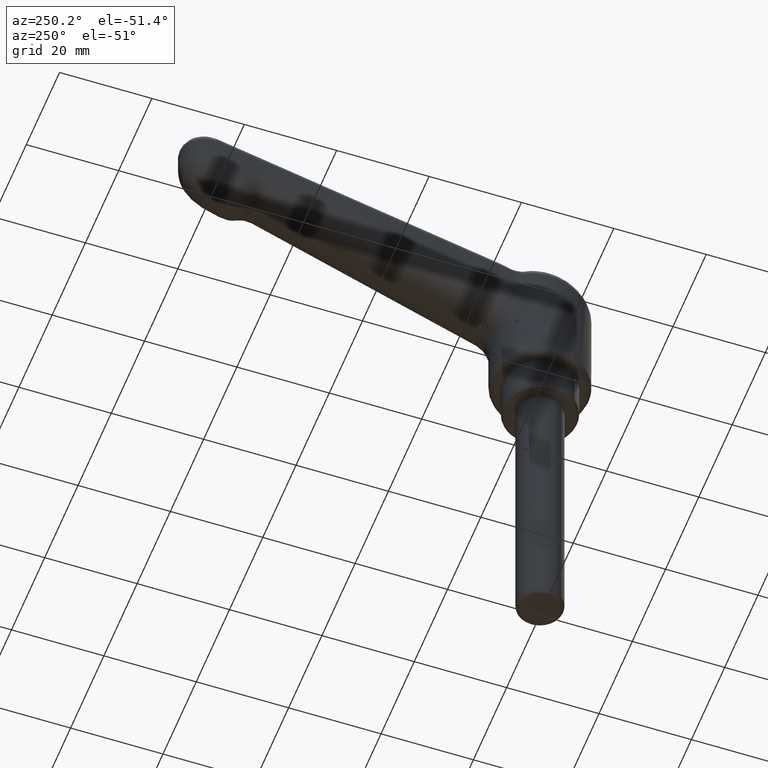
[diagram: clean part render]
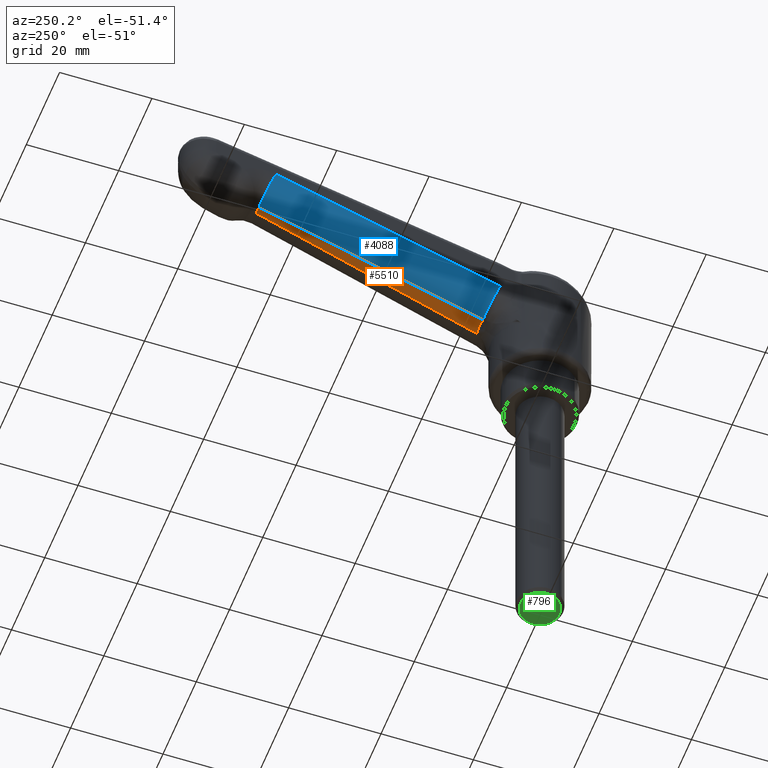
[diagram: same view with three faces highlighted in distinct colors, each labeled with its STEP entity id]
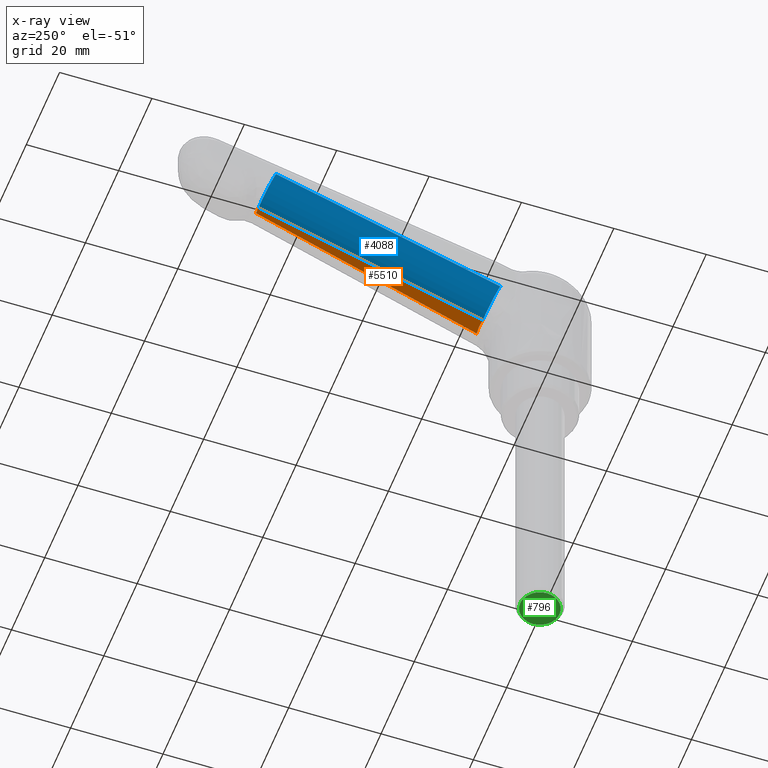
[diagram: x-ray of the same camera — body ghosted, the three highlighted faces saturated]
A machine part, auxiliary view with three faces highlighted in distinct colors.
The next image is the same camera in x-ray (body ghosted, the three faces saturated) — at least one of them is partly hidden behind the body in this view.
Their STEP definitions:

[orange] entity #5510 — the highlighted face is a freeform B-spline surface patch.
#3114=CARTESIAN_POINT('',(61.163736130805503,-0.794885205271934,33.054697017193099));
#3115=VERTEX_POINT('',#3114);
#3169=CARTESIAN_POINT('',(13.005437633756101,-1.911018015219480,15.526517656288650));
#3170=VERTEX_POINT('',#3169);
#3185=CARTESIAN_POINT('',(61.163736130805503,-0.794885205271934,33.054697017193099));
#3186=CARTESIAN_POINT('',(13.005437633756101,-1.911018015219480,15.526517656288650));
#3187=QUASI_UNIFORM_CURVE('',1,(#3185,#3186),.UNSPECIFIED.,.F.,.U.);
#3188=EDGE_CURVE('',#3115,#3170,#3187,.T.);
#4002=CARTESIAN_POINT('',(61.163736130805503,0.794885205271823,33.054697017193099));
#4003=VERTEX_POINT('',#4002);
#4057=CARTESIAN_POINT('',(13.005437633756101,1.911018015219485,15.526517656288650));
#4058=VERTEX_POINT('',#4057);
#4081=CARTESIAN_POINT('',(13.005437633756101,1.911018015219485,15.526517656288650));
#4082=CARTESIAN_POINT('',(61.163736130805503,0.794885205271823,33.054697017193099));
#4083=QUASI_UNIFORM_CURVE('',1,(#4081,#4082),.UNSPECIFIED.,.F.,.U.);
#4084=EDGE_CURVE('',#4058,#4003,#4083,.T.);
#4343=CARTESIAN_POINT('',(61.163736130805503,0.794885205271823,33.054697017193099));
#4344=CARTESIAN_POINT('',(61.163736130805503,-0.794885205271934,33.054697017193099));
#4345=QUASI_UNIFORM_CURVE('',1,(#4343,#4344),.UNSPECIFIED.,.F.,.U.);
#4346=EDGE_CURVE('',#4003,#3115,#4345,.T.);
#4978=CARTESIAN_POINT('',(13.005437633756101,-1.911018015219480,15.526517656288650));
#4979=CARTESIAN_POINT('',(13.174143378410481,-0.645424743213084,15.587921498280631));
#4980=CARTESIAN_POINT('',(13.174003672925030,0.645423185377294,15.587870649665120));
#4981=CARTESIAN_POINT('',(13.005437633756101,1.911018015219485,15.526517656288650));
#4982=B_SPLINE_CURVE_WITH_KNOTS('',3,(#4978,#4979,#4980,#4981),.UNSPECIFIED.,.F.,.U.,(4,4),(2.738286E-009,3.834676172867781),.UNSPECIFIED.);
#4983=EDGE_CURVE('',#3170,#4058,#4982,.T.);
#5499=CARTESIAN_POINT('',(10.599930889223890,-2.101928707532058,14.650985193807401));
#5500=CARTESIAN_POINT('',(63.569240722494023,-2.101928707532058,33.930228696103633));
#5501=CARTESIAN_POINT('',(10.599930889223890,2.101928810047059,14.650985193807401));
#5502=CARTESIAN_POINT('',(63.569240722494023,2.101928810047059,33.930228696103633));
#5503=B_SPLINE_SURFACE_WITH_KNOTS('',1,1,((#5499,#5501),(#5500,#5502)),.UNSPECIFIED.,.F.,.F.,.U.,(2,2),(2,2),(0.0,56.368759204312802),(0.0,4.203857517579117),.UNSPECIFIED.);
#5504=ORIENTED_EDGE('',*,*,#4346,.T.);
#5505=ORIENTED_EDGE('',*,*,#3188,.T.);
#5506=ORIENTED_EDGE('',*,*,#4983,.T.);
#5507=ORIENTED_EDGE('',*,*,#4084,.T.);
#5508=EDGE_LOOP('',(#5504,#5505,#5506,#5507));
#5509=FACE_OUTER_BOUND('',#5508,.T.);
#5510=ADVANCED_FACE('',(#5509),#5503,.F.);

[blue] entity #4088 — the highlighted face is a freeform B-spline surface patch.
#4002=CARTESIAN_POINT('',(61.163736130805503,0.794885205271823,33.054697017193099));
#4003=VERTEX_POINT('',#4002);
#4004=CARTESIAN_POINT('',(59.410061699998501,6.293408658326110,38.223006701410803));
#4005=VERTEX_POINT('',#4004);
#4006=CARTESIAN_POINT('',(61.163736130805503,0.794885205271823,33.054697017193099));
#4007=CARTESIAN_POINT('',(61.174820961177083,1.332032634786109,33.058445341459652));
#4008=CARTESIAN_POINT('',(61.151158126316147,2.115150332408724,33.173324655471568));
#4009=CARTESIAN_POINT('',(61.030587934510372,3.227697185339556,33.575431753242590));
#4010=CARTESIAN_POINT('',(60.885213632777500,4.020756065223317,34.025343742976382));
#4011=CARTESIAN_POINT('',(60.682278990182802,4.745891429776674,34.629076409539131));
#4012=CARTESIAN_POINT('',(60.475460255120709,5.279609428456720,35.231291752622681));
#4013=CARTESIAN_POINT('',(60.216102596407687,5.756720724787903,35.974252150816028));
#4014=CARTESIAN_POINT('',(59.866504582389901,6.167767588169885,36.960939247499212));
#4015=CARTESIAN_POINT('',(59.578416980457007,6.289666713823559,37.760215889549158));
#4016=CARTESIAN_POINT('',(59.410061699998501,6.293408658326110,38.223006701410803));
#4017=B_SPLINE_CURVE_WITH_KNOTS('',3,(#4006,#4007,#4008,#4009,#4010,#4011,#4012,#4013,#4014,#4015,#4016),.UNSPECIFIED.,.F.,.U.,(4,1,1,1,1,1,1,1,4),(0.000000126640677,1.611710439410921,2.350431836063304,3.559247636671121,4.365040148519255,5.238072709785161,6.043951686618041,7.118451042623086,8.595847202874614),.UNSPECIFIED.);
#4018=EDGE_CURVE('',#4003,#4005,#4017,.T.);
#4043=CARTESIAN_POINT('',(9.998545241252071,7.436701247559301,20.391917680247278));
#4044=CARTESIAN_POINT('',(60.594857599714651,6.264064214108152,38.807461121297592));
#4045=CARTESIAN_POINT('',(12.017655519398268,7.544339504780888,14.851309332779769));
#4046=CARTESIAN_POINT('',(62.613967877860844,6.371702471329740,33.266852773830088));
#4047=CARTESIAN_POINT('',(11.793181169137720,1.655545387337089,15.093070119911189));
#4048=CARTESIAN_POINT('',(62.389493527600301,0.482908353885943,33.508613560961500));
#4056=(BOUNDED_SURFACE()B_SPLINE_SURFACE(1,2,((#4043,#4045,#4047),(#4044,#4046,#4048)),.UNSPECIFIED.,.F.,.F.,.U.)B_SPLINE_SURFACE_WITH_KNOTS((2,2),(3,3),(0.0,53.856235870292181),(0.0,9.565872249140520),.UNSPECIFIED.)GEOMETRIC_REPRESENTATION_ITEM()RATIONAL_B_SPLINE_SURFACE(((1.0,0.681998360062498,1.0),(1.0,0.681998360062498,1.0)))REPRESENTATION_ITEM('')SURFACE());
#4057=CARTESIAN_POINT('',(13.005437633756101,1.911018015219485,15.526517656288650));
#4058=VERTEX_POINT('',#4057);
#4059=CARTESIAN_POINT('',(11.251763202949100,7.409541468273670,20.694827340506350));
#4060=VERTEX_POINT('',#4059);
#4061=CARTESIAN_POINT('',(13.005437633756101,1.911018015219485,15.526517656288650));
#4062=CARTESIAN_POINT('',(13.016506159397020,2.448147243878821,15.530309618487410));
#4063=CARTESIAN_POINT('',(12.988837655005980,3.365585103820710,15.664747459490830));
#4064=CARTESIAN_POINT('',(12.848545170105419,4.506919317893559,16.122874214291549));
#4065=CARTESIAN_POINT('',(12.670659122015129,5.367726980459805,16.666425537076801));
#4066=CARTESIAN_POINT('',(12.466409953557660,6.033594518862233,17.269995868667291));
#4067=CARTESIAN_POINT('',(12.219911820544500,6.598586260944492,17.983220912289489));
#4068=CARTESIAN_POINT('',(11.955315607888931,7.012114412049160,18.736525374532079));
#4069=CARTESIAN_POINT('',(11.624935362003310,7.324253875427645,19.664113988297110));
#4070=CARTESIAN_POINT('',(11.389506188057871,7.406426268310685,20.316183065311741));
#4071=CARTESIAN_POINT('',(11.251763202949100,7.409541468273670,20.694827340506350));
#4072=B_SPLINE_CURVE_WITH_KNOTS('',3,(#4061,#4062,#4063,#4064,#4065,#4066,#4067,#4068,#4069,#4070,#4071),.UNSPECIFIED.,.F.,.U.,(4,1,1,1,1,1,1,1,4),(0.000000126640774,1.611710439411702,2.753370640453243,3.693539622884593,4.700852044533944,5.506707272620989,6.514041679502162,7.387063620721621,8.595847202874577),.UNSPECIFIED.);
#4073=EDGE_CURVE('',#4058,#4060,#4072,.T.);
#4074=ORIENTED_EDGE('',*,*,#4073,.T.);
#4075=CARTESIAN_POINT('',(59.410061699998501,6.293408658326110,38.223006701410803));
#4076=CARTESIAN_POINT('',(11.251763202949100,7.409541468273670,20.694827340506350));
#4077=QUASI_UNIFORM_CURVE('',1,(#4075,#4076),.UNSPECIFIED.,.F.,.U.);
#4078=EDGE_CURVE('',#4005,#4060,#4077,.T.);
#4079=ORIENTED_EDGE('',*,*,#4078,.F.);
#4080=ORIENTED_EDGE('',*,*,#4018,.F.);
#4081=CARTESIAN_POINT('',(13.005437633756101,1.911018015219485,15.526517656288650));
#4082=CARTESIAN_POINT('',(61.163736130805503,0.794885205271823,33.054697017193099));
#4083=QUASI_UNIFORM_CURVE('',1,(#4081,#4082),.UNSPECIFIED.,.F.,.U.);
#4084=EDGE_CURVE('',#4058,#4003,#4083,.T.);
#4085=ORIENTED_EDGE('',*,*,#4084,.F.);
#4086=EDGE_LOOP('',(#4074,#4079,#4080,#4085));
#4087=FACE_OUTER_BOUND('',#4086,.T.);
#4088=ADVANCED_FACE('',(#4087),#4056,.T.);

[green] entity #796 — the highlighted face is a freeform B-spline surface patch.
#66=CARTESIAN_POINT('',(0.000001787845054,4.249999999999624,-71.0));
#67=VERTEX_POINT('',#66);
#68=CARTESIAN_POINT('',(2.978864843121910,3.031314887025157,-70.999999776553437));
#69=VERTEX_POINT('',#68);
#70=CARTESIAN_POINT('',(0.000001787845054,4.249999999999624,-71.0));
#71=CARTESIAN_POINT('',(0.309460201796698,4.250053014258914,-70.999999976787265));
#72=CARTESIAN_POINT('',(0.928337119416722,4.182097182766597,-70.999999930365121));
#73=CARTESIAN_POINT('',(1.976391944715552,3.826022746424748,-70.999999851749351));
#74=CARTESIAN_POINT('',(2.635695887347267,3.368950032814449,-70.999999802295463));
#75=CARTESIAN_POINT('',(2.978864843121910,3.031314887025157,-70.999999776553437));
#76=B_SPLINE_CURVE_WITH_KNOTS('',3,(#70,#71,#72,#73,#74,#75),.UNSPECIFIED.,.F.,.U.,(4,1,1,4),(0.000000036120430,0.928372056887577,1.856727392738512,3.300872674038197),.UNSPECIFIED.);
#77=EDGE_CURVE('',#67,#69,#76,.T.);
#79=CARTESIAN_POINT('',(-4.250000000000000,0.0,-71.0));
#80=VERTEX_POINT('',#79);
#81=CARTESIAN_POINT('',(-4.250000000000000,0.0,-71.0));
#82=CARTESIAN_POINT('',(-4.250022819945396,0.278157455233898,-71.000000000000156));
#83=CARTESIAN_POINT('',(-4.190088129939887,0.886638598650952,-70.999999999999787));
#84=CARTESIAN_POINT('',(-3.893795860162321,1.802614425307331,-71.000000000000142));
#85=CARTESIAN_POINT('',(-3.369976494451049,2.652619176119683,-70.999999999999886));
#86=CARTESIAN_POINT('',(-2.664983811791425,3.357605671014253,-71.000000000000270));
#87=CARTESIAN_POINT('',(-1.848502452952194,3.867674983676209,-70.999999999999233));
#88=CARTESIAN_POINT('',(-0.938770748188838,4.180569647602062,-71.000000000001620));
#89=CARTESIAN_POINT('',(-0.312926776398313,4.250051020751563,-70.999999999997982));
#90=CARTESIAN_POINT('',(0.000001787845054,4.249999999999624,-71.0));
#91=B_SPLINE_CURVE_WITH_KNOTS('',3,(#81,#82,#83,#84,#85,#86,#87,#88,#89,#90),.UNSPECIFIED.,.F.,.U.,(4,1,1,1,1,1,1,4),(0.000000139797547,0.834481430721351,1.825451047625486,2.868591838382639,3.807337430320038,4.798318924799253,5.737146137897394,6.675927284895954),.UNSPECIFIED.);
#92=EDGE_CURVE('',#80,#67,#91,.T.);
#94=CARTESIAN_POINT('',(-0.000001787844995,-4.249999999999624,-70.999999999999986));
#95=VERTEX_POINT('',#94);
#96=CARTESIAN_POINT('',(-0.000001787844995,-4.249999999999624,-70.999999999999986));
#97=CARTESIAN_POINT('',(-0.278160161631850,-4.250026312614915,-70.999999999999901));
#98=CARTESIAN_POINT('',(-0.886641954921516,-4.190086601277961,-71.000000000000185));
#99=CARTESIAN_POINT('',(-1.686011812394145,-3.931466487809294,-71.000000000000142));
#100=CARTESIAN_POINT('',(-2.401687241097896,-3.531749990323090,-70.999999999999474));
#101=CARTESIAN_POINT('',(-2.984920284288984,-3.059072195481141,-71.000000000000682));
#102=CARTESIAN_POINT('',(-3.551056129162910,-2.394610757929646,-70.999999999999673));
#103=CARTESIAN_POINT('',(-4.087933871670277,-1.390547468707276,-71.000000000000369));
#104=CARTESIAN_POINT('',(-4.250414728760862,-0.521611956449090,-71.0));
#105=CARTESIAN_POINT('',(-4.250000000000000,0.0,-71.0));
#106=B_SPLINE_CURVE_WITH_KNOTS('',3,(#96,#97,#98,#99,#100,#101,#102,#103,#104,#105),.UNSPECIFIED.,.F.,.U.,(4,1,1,1,1,1,1,4),(0.000000140420664,0.834481179056700,1.825450497188081,2.503495105474535,3.285848921025866,4.068125941066475,5.111257912878251,6.675925269565289),.UNSPECIFIED.);
#107=EDGE_CURVE('',#95,#80,#106,.T.);
#109=CARTESIAN_POINT('',(3.031313930784883,-2.978863903427198,-71.000000223446619));
#110=VERTEX_POINT('',#109);
#111=CARTESIAN_POINT('',(3.031313930784883,-2.978863903427198,-71.000000223446619));
#112=CARTESIAN_POINT('',(2.760342386722441,-3.254792998056692,-71.000000203472425));
#113=CARTESIAN_POINT('',(2.142373070491224,-3.731845074872747,-71.000000157920454));
#114=CARTESIAN_POINT('',(1.089848751724833,-4.157941583359449,-71.000000080336022));
#115=CARTESIAN_POINT('',(0.351566662600345,-4.250075788245120,-71.000000025915114));
#116=CARTESIAN_POINT('',(-0.000001787844995,-4.249999999999624,-70.999999999999986));
#117=B_SPLINE_CURVE_WITH_KNOTS('',3,(#111,#112,#113,#114,#115,#116),.UNSPECIFIED.,.F.,.U.,(4,1,1,4),(0.000000035726157,1.160176603548453,2.320346962615482,3.375053612798562),.UNSPECIFIED.);
#118=EDGE_CURVE('',#110,#95,#117,.T.);
#219=CARTESIAN_POINT('',(4.250000000000000,0.0,-71.0));
#220=VERTEX_POINT('',#219);
#221=CARTESIAN_POINT('',(2.978864843121910,3.031314887025157,-70.999999776553437));
#222=CARTESIAN_POINT('',(3.317606315402519,2.698830810882244,-70.999999801061776));
#223=CARTESIAN_POINT('',(3.798054493440591,2.034375232011878,-70.999999850040695));
#224=CARTESIAN_POINT('',(4.177056828943707,0.966789668775102,-70.999999928735221));
#225=CARTESIAN_POINT('',(4.250047087160324,0.316410744718599,-70.999999976676349));
#226=CARTESIAN_POINT('',(4.250000000000000,0.0,-71.0));
#227=B_SPLINE_CURVE_WITH_KNOTS('',3,(#221,#222,#223,#224,#225,#226),.UNSPECIFIED.,.F.,.U.,(4,1,1,4),(0.000000035708886,1.423851564961689,2.425816632532042,3.375052357256144),.UNSPECIFIED.);
#228=EDGE_CURVE('',#69,#220,#227,.T.);
#252=CARTESIAN_POINT('',(4.250000000000000,0.0,-71.0));
#253=CARTESIAN_POINT('',(4.250359715874431,-0.481434259931417,-71.000000036112894));
#254=CARTESIAN_POINT('',(4.117064906503451,-1.254818898701330,-71.000000094124573));
#255=CARTESIAN_POINT('',(3.642891679581885,-2.254204700602548,-71.000000169089589));
#256=CARTESIAN_POINT('',(3.260318364293403,-2.745925686233264,-71.000000205973734));
#257=CARTESIAN_POINT('',(3.031313930784883,-2.978863903427198,-71.000000223446619));
#258=B_SPLINE_CURVE_WITH_KNOTS('',3,(#252,#253,#254,#255,#256,#257),.UNSPECIFIED.,.F.,.U.,(4,1,1,4),(0.000000036104486,1.444145871849400,2.320923341589928,3.300873941279295),.UNSPECIFIED.);
#259=EDGE_CURVE('',#220,#110,#258,.T.);
#783=CARTESIAN_POINT('',(-4.674574983525350,-4.674574983524938,-71.0));
#784=CARTESIAN_POINT('',(4.674575211513117,-4.674574983524938,-71.0));
#785=CARTESIAN_POINT('',(-4.674574983525350,4.674575211512705,-71.0));
#786=CARTESIAN_POINT('',(4.674575211513117,4.674575211512704,-71.0));
#787=B_SPLINE_SURFACE_WITH_KNOTS('',1,1,((#783,#785),(#784,#786)),.UNSPECIFIED.,.F.,.F.,.U.,(2,2),(2,2),(0.0,9.349150195038467),(0.0,9.349150195037643),.UNSPECIFIED.);
#788=ORIENTED_EDGE('',*,*,#259,.T.);
#789=ORIENTED_EDGE('',*,*,#118,.T.);
#790=ORIENTED_EDGE('',*,*,#107,.T.);
#791=ORIENTED_EDGE('',*,*,#92,.T.);
#792=ORIENTED_EDGE('',*,*,#77,.T.);
#793=ORIENTED_EDGE('',*,*,#228,.T.);
#794=EDGE_LOOP('',(#788,#789,#790,#791,#792,#793));
#795=FACE_OUTER_BOUND('',#794,.T.);
#796=ADVANCED_FACE('',(#795),#787,.F.);